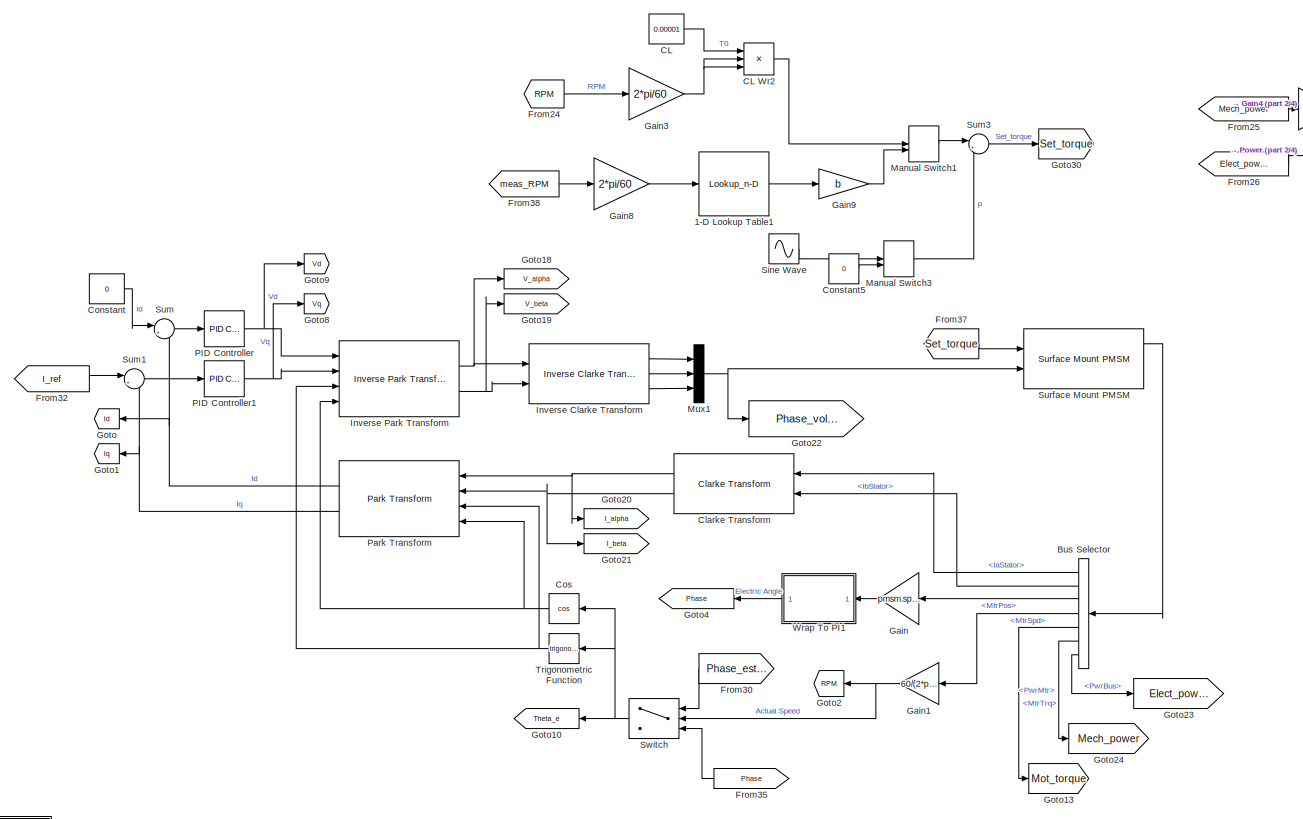
[diagram: root canvas - part 1/4, top center region]
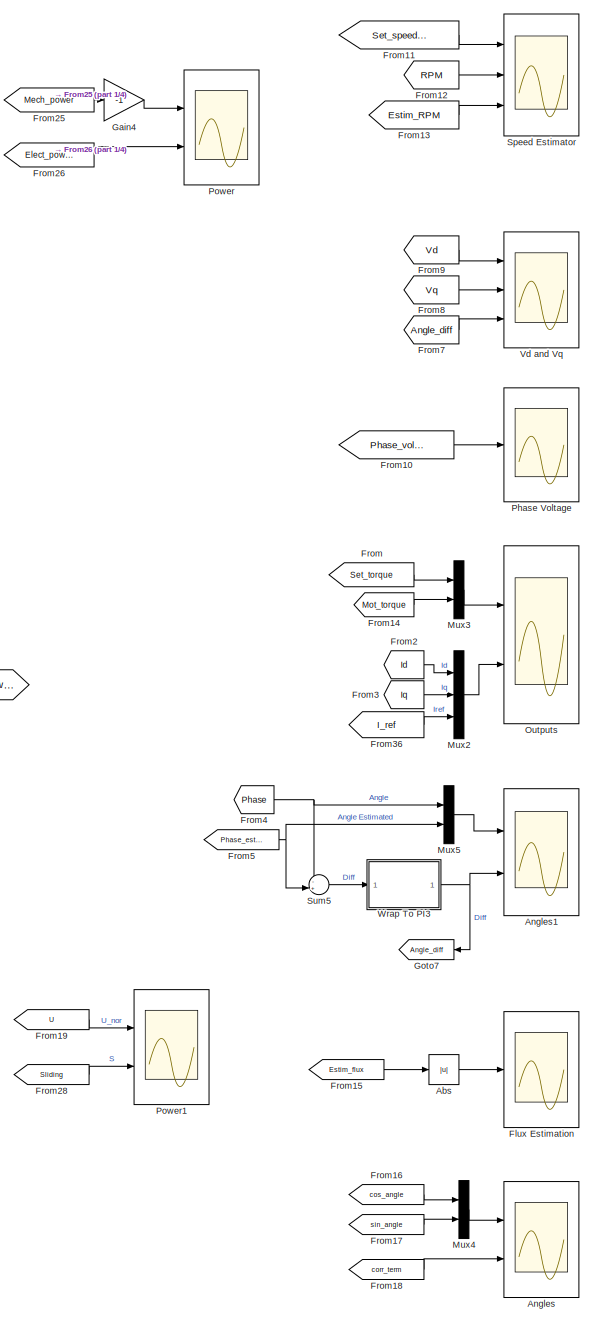
[diagram: root canvas - part 2/4, right side, full height]
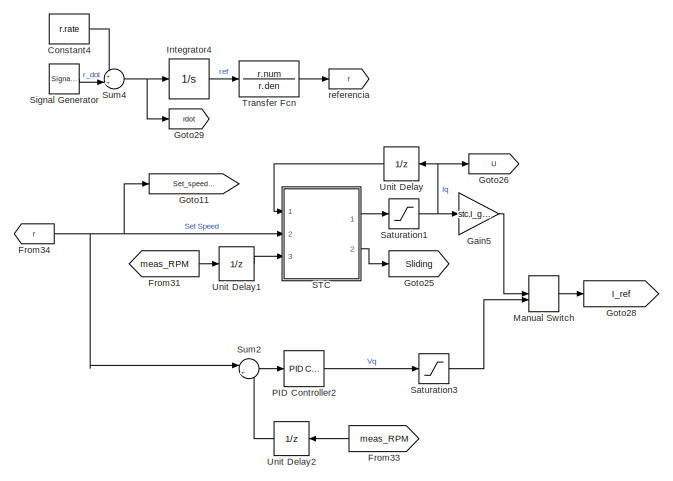
[diagram: root canvas - part 3/4, top left region]
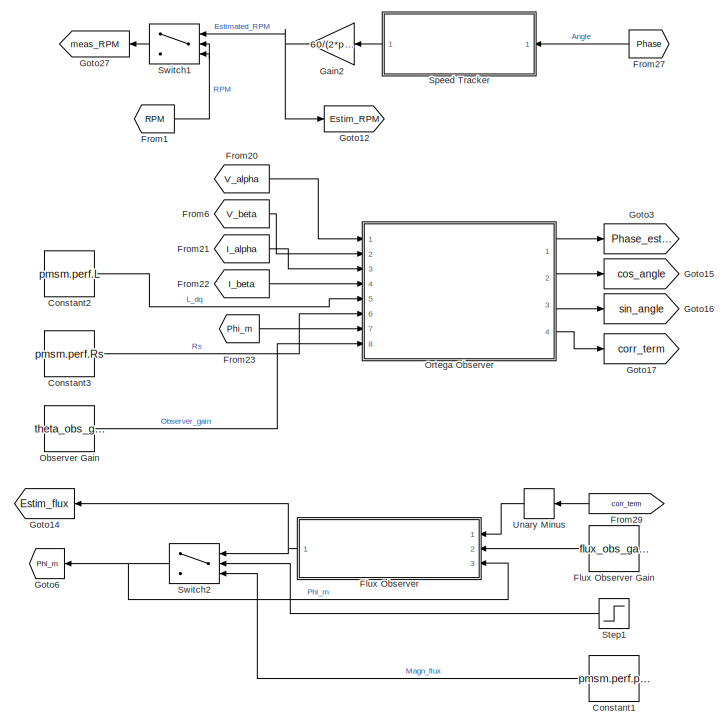
[diagram: root canvas - part 4/4, bottom left region]
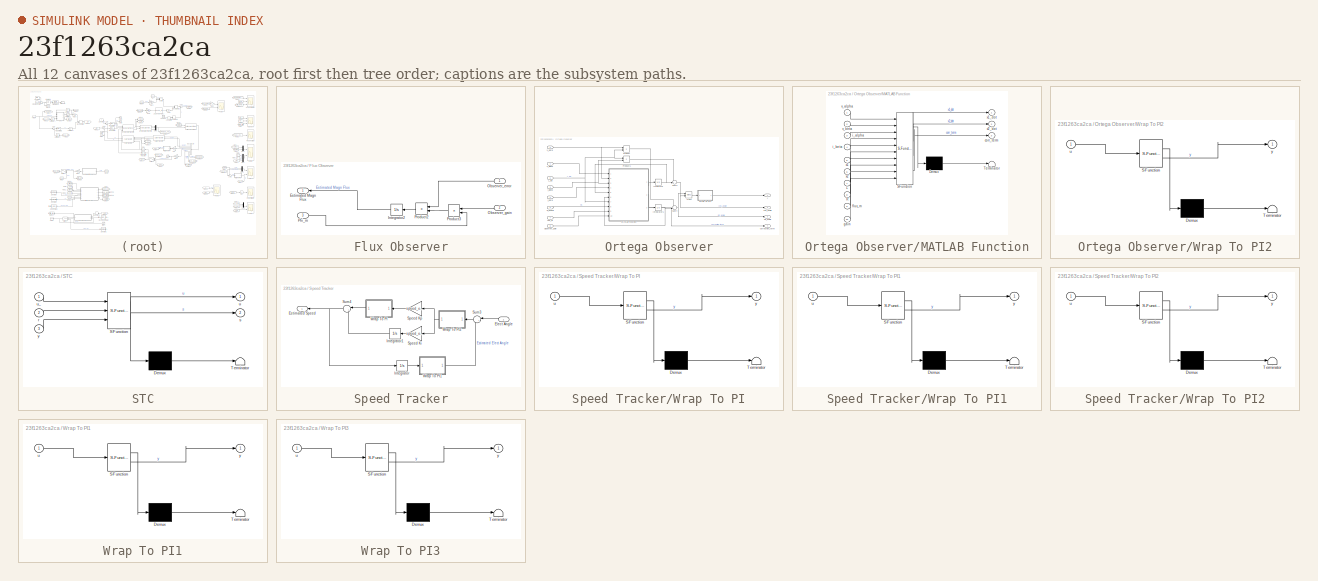
[diagram: thumbnail index - all 12 canvases of the model, root first then tree order]
MODEL slx_23f1263ca2ca
KIND model
CONFIG AbsTol = auto
CONFIG EnableMultiTasking = off
CONFIG FixedStep = 1e-4
CONFIG InitFcn = bldc_data\ntest_data
CONFIG MaxStep = auto
CONFIG MinStep = auto
CONFIG RelTol = 1e-5
CONFIG SampleTimeConstraint = Unconstrained
CONFIG SolverName = VariableStepAuto
CONFIG StartTime = 0.0
CONFIG StopTime = 3.0
BLOCK [Lookup_n-D] 1-D Lookup Table1
  BreakpointsForDimension1 = fluid.W
  InputPortMap = u0
  InternalRulePriority = Speed
  NumberOfTableDimensions = 1
  Ports = [1, 1]
  RndMeth = Simplest
  Table = fluid.P
BLOCK [Abs] Abs
  SaturateOnIntegerOverflow = off
BLOCK [Scope] Angles
  Floating = off
  NumInputPorts = 2
  Ports = [2]
  ScopeSpecificationString = Simulink.scopes.TimeScopeBlockCfg('CurrentConfiguration', extmgr.ConfigurationSet(extmgr.Configuration('Core','General UI',true),extmgr.Configuration('Core','Source UI',true),extmgr.Configuration('Sources','WiredSimulink',true,'DataLoggingVariableName','Angles','DataLogging',true,'DataLoggingSaveFormat','StructureWithTime'),extmgr.Configuration('Visuals','Time Domain',true,'SerializedDisplays',{st...<+2566ch>
BLOCK [Scope] Angles1
  Floating = off
  NumInputPorts = 2
  Ports = [2]
  ScopeSpecificationString = Simulink.scopes.TimeScopeBlockCfg('CurrentConfiguration', extmgr.ConfigurationSet(extmgr.Configuration('Core','General UI',true),extmgr.Configuration('Core','Source UI',true),extmgr.Configuration('Sources','WiredSimulink',true,'DataLoggingVariableName','Angles2','DataLogging',true,'DataLoggingSaveFormat','StructureWithTime'),extmgr.Configuration('Visuals','Time Domain',true,'SerializedDisplays',{s...<+2137ch>
BLOCK [BusSelector] Bus Selector
  OutputSignals = IaStator,IbStator,MtrPos,MtrSpd,MtrTrq,PwrInfo.PwrTrnsfrd.PwrMtr,PwrInfo.PwrTrnsfrd.PwrBus
  Ports = [1, 7]
BLOCK [Constant] CL
  Value = 0.00001
BLOCK [Product] CL Wr2
  Inputs = 3
  Ports = [3, 1]
BLOCK [Reference] Clarke Transform  REF=mcbcontrolslib/Clarke Transform
  Ports = [2, 2]
  SourceBlock = mcbcontrolslib/Clarke Transform
  SourceProductBaseCode = MT
  SourceType = Clarke Transform
BLOCK [Constant] Constant
  Value = 0
BLOCK [Constant] Constant1
  Value = pmsm.perf.phi
BLOCK [Constant] Constant2
  Value = pmsm.perf.L
BLOCK [Constant] Constant3
  Value = pmsm.perf.Rs
BLOCK [Constant] Constant4
  Value = r.rate
BLOCK [Constant] Constant5
  Value = 0
BLOCK [Trigonometry] Cos
  Operator = cos
  Ports = [1, 1]
BLOCK [Scope] Flux Estimation
  Floating = off
  NumInputPorts = 1
  Ports = [1]
  ScopeSpecificationString = Simulink.scopes.TimeScopeBlockCfg('CurrentConfiguration', extmgr.ConfigurationSet(extmgr.Configuration('Core','General UI',true),extmgr.Configuration('Core','Source UI',true),extmgr.Configuration('Sources','WiredSimulink',true,'DataLoggingVariableName','Flux','DataLogging',true,'DataLoggingSaveFormat','StructureWithTime'),extmgr.Configuration('Visuals','Time Domain',true,'SerializedDisplays',{stru...<+1716ch>
BLOCK [SubSystem] Flux Observer
  Ports = [3, 1]
  RequestExecContextInheritance = off
BLOCK [Constant] Flux Observer Gain
  Value = flux_obs_gain
BLOCK [Outport] Flux Observer/Estimated Magn Flux
BLOCK [Integrator] Flux Observer/Integrator2
  Ports = [1, 1]
BLOCK [Inport] Flux Observer/Observer_error
BLOCK [Inport] Flux Observer/Observer_gain
  Port = 2
BLOCK [Inport] Flux Observer/Phi_m
  Port = 3
BLOCK [Product] Flux Observer/Product2
  Ports = [2, 1]
BLOCK [Product] Flux Observer/Product3
  Ports = [2, 1]
BLOCK [From] From
  GotoTag = Set_torque
BLOCK [From] From1
  GotoTag = RPM
BLOCK [From] From10
  GotoTag = Phase_voltages
BLOCK [From] From11
  GotoTag = Set_speed_RPM
BLOCK [From] From12
  GotoTag = RPM
BLOCK [From] From13
  GotoTag = Estim_RPM
BLOCK [From] From14
  GotoTag = Mot_torque
BLOCK [From] From15
  GotoTag = Estim_flux
BLOCK [From] From16
  GotoTag = cos_angle
BLOCK [From] From17
  GotoTag = sin_angle
BLOCK [From] From18
  GotoTag = corr_term
BLOCK [From] From19
  GotoTag = U
BLOCK [From] From2
  GotoTag = Id
BLOCK [From] From20
  GotoTag = V_alpha
BLOCK [From] From21
  GotoTag = I_alpha
BLOCK [From] From22
  GotoTag = I_beta
BLOCK [From] From23
  GotoTag = Phi_m
BLOCK [From] From24
  GotoTag = RPM
BLOCK [From] From25
  GotoTag = Mech_power
BLOCK [From] From26
  GotoTag = Elect_power
BLOCK [From] From27
  GotoTag = Phase
BLOCK [From] From28
  GotoTag = Sliding
BLOCK [From] From29
  GotoTag = corr_term
BLOCK [From] From3
  GotoTag = Iq
BLOCK [From] From30
  GotoTag = Phase_estim
BLOCK [From] From31
  GotoTag = meas_RPM
BLOCK [From] From32
  GotoTag = I_ref
BLOCK [From] From33
  GotoTag = meas_RPM
BLOCK [From] From34
  GotoTag = r
BLOCK [From] From35
  GotoTag = Phase
BLOCK [From] From36
  GotoTag = I_ref
BLOCK [From] From37
  GotoTag = Set_torque
BLOCK [From] From38
  GotoTag = meas_RPM
BLOCK [From] From4
  GotoTag = Phase
BLOCK [From] From5
  GotoTag = Phase_estim
BLOCK [From] From6
  GotoTag = V_beta
BLOCK [From] From7
  GotoTag = Angle_diff
BLOCK [From] From8
  GotoTag = Vq
BLOCK [From] From9
  GotoTag = Vd
BLOCK [Gain] Gain
  Gain = pmsm.spec.poles/2
BLOCK [Gain] Gain1
  Gain = 60/(2*pi)
BLOCK [Gain] Gain2
  Gain = 60/(2*pi)/(pmsm.spec.poles/2)
BLOCK [Gain] Gain3
  Gain = 2*pi/60
BLOCK [Gain] Gain4
  Gain = -1
BLOCK [Gain] Gain5
  Gain = stc.I_gain
BLOCK [Gain] Gain8
  Gain = 2*pi/60
BLOCK [Gain] Gain9
  Gain = b
BLOCK [Goto] Goto
  GotoTag = Id
BLOCK [Goto] Goto1
  GotoTag = Iq
BLOCK [Goto] Goto10
  GotoTag = Theta_e
BLOCK [Goto] Goto11
  GotoTag = Set_speed_RPM
BLOCK [Goto] Goto12
  GotoTag = Estim_RPM
BLOCK [Goto] Goto13
  GotoTag = Mot_torque
BLOCK [Goto] Goto14
  GotoTag = Estim_flux
BLOCK [Goto] Goto15
  GotoTag = cos_angle
BLOCK [Goto] Goto16
  GotoTag = sin_angle
BLOCK [Goto] Goto17
  GotoTag = corr_term
BLOCK [Goto] Goto18
  GotoTag = V_alpha
BLOCK [Goto] Goto19
  GotoTag = V_beta
BLOCK [Goto] Goto2
  GotoTag = RPM
BLOCK [Goto] Goto20
  GotoTag = I_alpha
BLOCK [Goto] Goto21
  GotoTag = I_beta
BLOCK [Goto] Goto22
  GotoTag = Phase_voltages
BLOCK [Goto] Goto23
  GotoTag = Elect_power
BLOCK [Goto] Goto24
  GotoTag = Mech_power
BLOCK [Goto] Goto25
  GotoTag = Sliding
BLOCK [Goto] Goto26
  GotoTag = U
BLOCK [Goto] Goto27
  GotoTag = meas_RPM
BLOCK [Goto] Goto28
  GotoTag = I_ref
BLOCK [Goto] Goto29
  GotoTag = rdot
  NameLocation = top
BLOCK [Goto] Goto3
  GotoTag = Phase_estim
BLOCK [Goto] Goto30
  GotoTag = Set_torque
BLOCK [Goto] Goto4
  GotoTag = Phase
BLOCK [Goto] Goto6
  GotoTag = Phi_m
BLOCK [Goto] Goto7
  GotoTag = Angle_diff
BLOCK [Goto] Goto8
  GotoTag = Vq
BLOCK [Goto] Goto9
  GotoTag = Vd
BLOCK [Integrator] Integrator4
  InitialCondition = r.off
  LimitOutput = on
  LowerSaturationLimit = 0
  Ports = [1, 1]
  UpperSaturationLimit = r.lim
BLOCK [Reference] Inverse Clarke Transform  REF=mcbcontrolslib/Inverse Clarke Transform
  Ports = [2, 3]
  SourceBlock = mcbcontrolslib/Inverse Clarke Transform
  SourceProductBaseCode = MT
  SourceType = Inverse Clarke Transform
BLOCK [Reference] Inverse Park Transform  REF=mcbcontrolslib/Inverse Park Transform
  Ports = [4, 2]
  SourceBlock = mcbcontrolslib/Inverse Park Transform
  SourceProductBaseCode = MT
  SourceType = Inverse Park Transform
BLOCK [ManualSwitch] Manual Switch
  CurrentSetting = 0
BLOCK [ManualSwitch] Manual Switch1
BLOCK [ManualSwitch] Manual Switch3
  CurrentSetting = 0
BLOCK [Mux] Mux1
  DisplayOption = bar
  Inputs = 3
  Ports = [3, 1]
BLOCK [Mux] Mux2
  DisplayOption = bar
  Inputs = 3
  Ports = [3, 1]
BLOCK [Mux] Mux3
  DisplayOption = bar
  Inputs = 2
  Ports = [2, 1]
BLOCK [Mux] Mux4
  DisplayOption = bar
  Inputs = 2
  Ports = [2, 1]
BLOCK [Mux] Mux5
  DisplayOption = bar
  Inputs = 2
  Ports = [2, 1]
BLOCK [Constant] Observer Gain
  NameLocation = left
  Value = theta_obs_gain
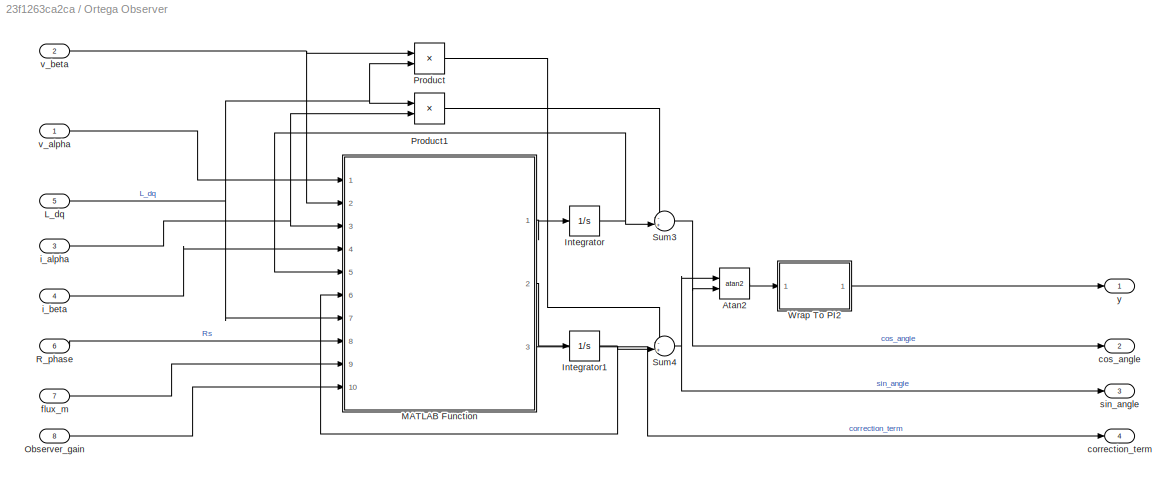
BLOCK [SubSystem] Ortega Observer
  Ports = [8, 4]
  RequestExecContextInheritance = off
BLOCK [Trigonometry] Ortega Observer/Atan2
  Operator = atan2
  Ports = [2, 1]
BLOCK [Integrator] Ortega Observer/Integrator
  Ports = [1, 1]
BLOCK [Integrator] Ortega Observer/Integrator1
  Ports = [1, 1]
BLOCK [Inport] Ortega Observer/L_dq
  Port = 5
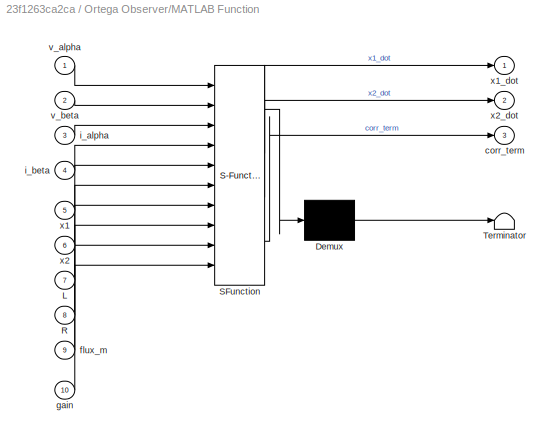
BLOCK [SubSystem] Ortega Observer/MATLAB Function
  ErrorFcn = Stateflow.Translate.translate
  PermitHierarchicalResolution = ExplicitOnly
  Ports = [10, 3]
  RequestExecContextInheritance = off
  SFBlockType = MATLAB Function
  TreatAsAtomicUnit = on
BLOCK [Demux] Ortega Observer/MATLAB Function/ Demux 
  Outputs = 1
  Ports = [1, 1]
BLOCK [S-Function] Ortega Observer/MATLAB Function/ SFunction 
  EnableBusSupport = on
  FunctionName = sf_sfun
  PortCounts = [10 4]
  Ports = [10, 4]
  SFcnIsStateOwnerBlock = off
  SFunctionDeploymentMode = off
  Tag = Stateflow S-Function 3
BLOCK [Terminator] Ortega Observer/MATLAB Function/ Terminator 
BLOCK [Inport] Ortega Observer/MATLAB Function/L
  Port = 7
BLOCK [Inport] Ortega Observer/MATLAB Function/R
  Port = 8
BLOCK [Outport] Ortega Observer/MATLAB Function/corr_term
  Port = 3
BLOCK [Inport] Ortega Observer/MATLAB Function/flux_m
  Port = 9
BLOCK [Inport] Ortega Observer/MATLAB Function/gain
  Port = 10
BLOCK [Inport] Ortega Observer/MATLAB Function/i_alpha
  Port = 3
BLOCK [Inport] Ortega Observer/MATLAB Function/i_beta
  Port = 4
BLOCK [Inport] Ortega Observer/MATLAB Function/v_alpha
BLOCK [Inport] Ortega Observer/MATLAB Function/v_beta
  Port = 2
BLOCK [Inport] Ortega Observer/MATLAB Function/x1
  Port = 5
BLOCK [Outport] Ortega Observer/MATLAB Function/x1_dot
BLOCK [Inport] Ortega Observer/MATLAB Function/x2
  Port = 6
BLOCK [Outport] Ortega Observer/MATLAB Function/x2_dot
  Port = 2
BLOCK [Inport] Ortega Observer/Observer_gain
  Port = 8
BLOCK [Product] Ortega Observer/Product
  Ports = [2, 1]
BLOCK [Product] Ortega Observer/Product1
  Ports = [2, 1]
BLOCK [Inport] Ortega Observer/R_phase
  Port = 6
BLOCK [Sum] Ortega Observer/Sum3
  Inputs = -+|
  Ports = [2, 1]
BLOCK [Sum] Ortega Observer/Sum4
  Inputs = -+|
  Ports = [2, 1]
BLOCK [SubSystem] Ortega Observer/Wrap To PI2
  ErrorFcn = Stateflow.Translate.translate
  PermitHierarchicalResolution = ExplicitOnly
  Ports = [1, 1]
  RequestExecContextInheritance = off
  SFBlockType = MATLAB Function
  TreatAsAtomicUnit = on
BLOCK [Demux] Ortega Observer/Wrap To PI2/ Demux 
  Outputs = 1
  Ports = [1, 1]
BLOCK [S-Function] Ortega Observer/Wrap To PI2/ SFunction 
  EnableBusSupport = on
  FunctionName = sf_sfun
  PortCounts = [1 2]
  Ports = [1, 2]
  SFcnIsStateOwnerBlock = off
  SFunctionDeploymentMode = off
  Tag = Stateflow S-Function 5
BLOCK [Terminator] Ortega Observer/Wrap To PI2/ Terminator 
BLOCK [Inport] Ortega Observer/Wrap To PI2/u
BLOCK [Outport] Ortega Observer/Wrap To PI2/y
BLOCK [Outport] Ortega Observer/correction_term
  Port = 4
BLOCK [Outport] Ortega Observer/cos_angle
  Port = 2
BLOCK [Inport] Ortega Observer/flux_m
  Port = 7
BLOCK [Inport] Ortega Observer/i_alpha
  Port = 3
BLOCK [Inport] Ortega Observer/i_beta
  Port = 4
BLOCK [Outport] Ortega Observer/sin_angle
  Port = 3
BLOCK [Inport] Ortega Observer/v_alpha
BLOCK [Inport] Ortega Observer/v_beta
  Port = 2
BLOCK [Outport] Ortega Observer/y
BLOCK [Scope] Outputs
  Floating = off
  NumInputPorts = 2
  Ports = [2]
  ScopeSpecificationString = Simulink.scopes.TimeScopeBlockCfg('CurrentConfiguration', extmgr.ConfigurationSet(extmgr.Configuration('Core','General UI',true),extmgr.Configuration('Core','Source UI',true),extmgr.Configuration('Sources','WiredSimulink',true,'DataLoggingVariableName','Torque_Curr','DataLogging',true,'DataLoggingSaveFormat','StructureWithTime'),extmgr.Configuration('Visuals','Time Domain',true,'SerializedDisplays...<+2128ch>
BLOCK [Reference] PID Controller  REF=pid_lib/PID Controller
  Ports = [1, 1]
  SourceBlock = pid_lib/PID Controller
  SourceProductBaseCode = SL
  SourceType = PID 1dof
BLOCK [Reference] PID Controller1  REF=pid_lib/PID Controller
  Ports = [1, 1]
  SourceBlock = pid_lib/PID Controller
  SourceProductBaseCode = SL
  SourceType = PID 1dof
BLOCK [Reference] PID Controller2  REF=pid_lib/PID Controller
  Ports = [1, 1]
  SourceBlock = pid_lib/PID Controller
  SourceProductBaseCode = SL
  SourceType = PID 1dof
BLOCK [Reference] Park Transform  REF=mcbcontrolslib/Park Transform
  Ports = [4, 2]
  SourceBlock = mcbcontrolslib/Park Transform
  SourceProductBaseCode = MT
  SourceType = Park Transform
BLOCK [Scope] Phase Voltage
  Floating = off
  NumInputPorts = 1
  Ports = [1]
  ScopeSpecificationString = Simulink.scopes.TimeScopeBlockCfg('CurrentConfiguration', extmgr.ConfigurationSet(extmgr.Configuration('Core','General UI',true),extmgr.Configuration('Core','Source UI',true),extmgr.Configuration('Sources','WiredSimulink',true,'DataLoggingVariableName','PhaseVolt','DataLogging',true,'DataLoggingSaveFormat','StructureWithTime'),extmgr.Configuration('Visuals','Time Domain',true,'SerializedDisplays',...<+1604ch>
BLOCK [Scope] Power
  Floating = off
  NumInputPorts = 2
  Ports = [2]
  ScopeSpecificationString = Simulink.scopes.TimeScopeBlockCfg('CurrentConfiguration', extmgr.ConfigurationSet(extmgr.Configuration('Core','General UI',true),extmgr.Configuration('Core','Source UI',true),extmgr.Configuration('Sources','WiredSimulink',true,'DataLoggingVariableName','ScopeData1'),extmgr.Configuration('Visuals','Time Domain',true,'SerializedDisplays',{struct('MinYLimReal','-13516.79456','MaxYLimReal','11646.9924...<+2157ch>
BLOCK [Scope] Power1
  Floating = off
  NumInputPorts = 2
  Ports = [2]
  ScopeSpecificationString = Simulink.scopes.TimeScopeBlockCfg('CurrentConfiguration', extmgr.ConfigurationSet(extmgr.Configuration('Core','General UI',true),extmgr.Configuration('Core','Source UI',true),extmgr.Configuration('Sources','WiredSimulink',true,'DataLoggingVariableName','ScopeData1'),extmgr.Configuration('Visuals','Time Domain',true,'SerializedDisplays',{struct('MinYLimReal','-1.25','MaxYLimReal','1.25','YLabelReal...<+2314ch>
BLOCK [SubSystem] STC
  ErrorFcn = Stateflow.Translate.translate
  PermitHierarchicalResolution = ExplicitOnly
  Ports = [3, 2]
  RequestExecContextInheritance = off
  SFBlockType = MATLAB Function
  SystemSampleTime = stc.ts
  TreatAsAtomicUnit = on
BLOCK [Demux] STC/ Demux 
  Outputs = 1
  Ports = [1, 1]
BLOCK [S-Function] STC/ SFunction 
  EnableBusSupport = on
  FunctionName = sf_sfun
  Parameters = stc
  PortCounts = [3 3]
  Ports = [3, 3]
  SFcnIsStateOwnerBlock = off
  SFunctionDeploymentMode = off
  Tag = Stateflow S-Function 8
BLOCK [Terminator] STC/ Terminator 
BLOCK [Inport] STC/r
  Port = 2
BLOCK [Outport] STC/s
  Port = 2
BLOCK [Outport] STC/u
BLOCK [Inport] STC/u_
BLOCK [Inport] STC/y
  Port = 3
BLOCK [Saturate] Saturation1
  LowerLimit = -stc.UM
  UpperLimit = stc.UM
BLOCK [Saturate] Saturation3
  LowerLimit = -current_limit
  UpperLimit = current_limit
BLOCK [SignalGenerator] Signal Generator
  Amplitude = r.a
  Frequency = r.f
  Ports = [0, 1]
BLOCK [Sin] Sine Wave
  Amplitude = p.a
  Frequency = p.w
  Ports = [0, 1]
  SampleTime = 0
BLOCK [Scope] Speed Estimator
  Floating = off
  NumInputPorts = 3
  Ports = [3]
  ScopeSpecificationString = Simulink.scopes.TimeScopeBlockCfg('CurrentConfiguration', extmgr.ConfigurationSet(extmgr.Configuration('Core','General UI',true),extmgr.Configuration('Core','Source UI',true),extmgr.Configuration('Sources','WiredSimulink',true,'DataLoggingVariableName','Speed','DataLogging',true,'DataLoggingSaveFormat','StructureWithTime'),extmgr.Configuration('Visuals','Time Domain',true,'SerializedDisplays',{str...<+1663ch>
BLOCK [SubSystem] Speed Tracker
  Ports = [1, 1]
  RequestExecContextInheritance = off
BLOCK [Inport] Speed Tracker/Elect Angle
BLOCK [Outport] Speed Tracker/Estimated Speed
BLOCK [Integrator] Speed Tracker/Integrator
  Ports = [1, 1]
BLOCK [Integrator] Speed Tracker/Integrator1
  Ports = [1, 1]
BLOCK [Gain] Speed Tracker/Speed Ki
  Gain = speed_obs.ki
BLOCK [Gain] Speed Tracker/Speed Kp
  Gain = speed_obs.kp
BLOCK [Sum] Speed Tracker/Sum3
  Inputs = |+-
  Ports = [2, 1]
BLOCK [Sum] Speed Tracker/Sum4
  Inputs = |++
  Ports = [2, 1]
BLOCK [SubSystem] Speed Tracker/Wrap To PI
  ErrorFcn = Stateflow.Translate.translate
  PermitHierarchicalResolution = ExplicitOnly
  Ports = [1, 1]
  RequestExecContextInheritance = off
  SFBlockType = MATLAB Function
  TreatAsAtomicUnit = on
BLOCK [Demux] Speed Tracker/Wrap To PI/ Demux 
  Outputs = 1
  Ports = [1, 1]
BLOCK [S-Function] Speed Tracker/Wrap To PI/ SFunction 
  EnableBusSupport = on
  FunctionName = sf_sfun
  PortCounts = [1 2]
  Ports = [1, 2]
  SFcnIsStateOwnerBlock = off
  SFunctionDeploymentMode = off
  Tag = Stateflow S-Function 2
BLOCK [Terminator] Speed Tracker/Wrap To PI/ Terminator 
BLOCK [Inport] Speed Tracker/Wrap To PI/u
BLOCK [Outport] Speed Tracker/Wrap To PI/y
BLOCK [SubSystem] Speed Tracker/Wrap To PI1
  ErrorFcn = Stateflow.Translate.translate
  PermitHierarchicalResolution = ExplicitOnly
  Ports = [1, 1]
  RequestExecContextInheritance = off
  SFBlockType = MATLAB Function
  TreatAsAtomicUnit = on
BLOCK [Demux] Speed Tracker/Wrap To PI1/ Demux 
  Outputs = 1
  Ports = [1, 1]
BLOCK [S-Function] Speed Tracker/Wrap To PI1/ SFunction 
  EnableBusSupport = on
  FunctionName = sf_sfun
  PortCounts = [1 2]
  Ports = [1, 2]
  SFcnIsStateOwnerBlock = off
  SFunctionDeploymentMode = off
  Tag = Stateflow S-Function 1
BLOCK [Terminator] Speed Tracker/Wrap To PI1/ Terminator 
BLOCK [Inport] Speed Tracker/Wrap To PI1/u
BLOCK [Outport] Speed Tracker/Wrap To PI1/y
BLOCK [SubSystem] Speed Tracker/Wrap To PI2
  ErrorFcn = Stateflow.Translate.translate
  PermitHierarchicalResolution = ExplicitOnly
  Ports = [1, 1]
  RequestExecContextInheritance = off
  SFBlockType = MATLAB Function
  TreatAsAtomicUnit = on
BLOCK [Demux] Speed Tracker/Wrap To PI2/ Demux 
  Outputs = 1
  Ports = [1, 1]
BLOCK [S-Function] Speed Tracker/Wrap To PI2/ SFunction 
  EnableBusSupport = on
  FunctionName = sf_sfun
  PortCounts = [1 2]
  Ports = [1, 2]
  SFcnIsStateOwnerBlock = off
  SFunctionDeploymentMode = off
  Tag = Stateflow S-Function 6
BLOCK [Terminator] Speed Tracker/Wrap To PI2/ Terminator 
BLOCK [Inport] Speed Tracker/Wrap To PI2/u
BLOCK [Outport] Speed Tracker/Wrap To PI2/y
BLOCK [Step] Step1
  After = 2
  SampleTime = 0
  Time = 0.01
BLOCK [Sum] Sum
  Inputs = |+-
  Ports = [2, 1]
BLOCK [Sum] Sum1
  Inputs = |+-
  Ports = [2, 1]
BLOCK [Sum] Sum2
  Inputs = |+-
  Ports = [2, 1]
BLOCK [Sum] Sum3
  Inputs = |++
  Ports = [2, 1]
BLOCK [Sum] Sum4
  Inputs = ++|
  Ports = [2, 1]
BLOCK [Sum] Sum5
  Inputs = -+|
  Ports = [2, 1]
BLOCK [Reference] Surface Mount PMSM  REF=autolibpmsmexterior/Surface Mount PMSM
  Ports = [2, 3]
  SourceBlock = autolibpmsmexterior/Surface Mount PMSM
  SourceProductBaseCode = PW,DR,MT,UV,VE
  SourceType = Surface Mount PMSM
BLOCK [Switch] Switch
  Criteria = u2 > Threshold
  InputSameDT = off
  SaturateOnIntegerOverflow = off
  Threshold = 3000
BLOCK [Switch] Switch1
  Criteria = u2 > Threshold
  InputSameDT = off
  SaturateOnIntegerOverflow = off
  Threshold = 25000
BLOCK [Switch] Switch2
  Criteria = u2 > Threshold
  InputSameDT = off
  SaturateOnIntegerOverflow = off
  Threshold = 0.5
BLOCK [TransferFcn] Transfer Fcn
  Denominator = r.den
  Numerator = r.num
BLOCK [Trigonometry] Trigonometric Function
  Ports = [1, 1]
BLOCK [UnaryMinus] Unary Minus
BLOCK [UnitDelay] Unit Delay
  HasFrameUpgradeWarning = on
  SampleTime = -1
BLOCK [UnitDelay] Unit Delay1
  HasFrameUpgradeWarning = on
  SampleTime = -1
BLOCK [UnitDelay] Unit Delay2
  HasFrameUpgradeWarning = on
  SampleTime = -1
BLOCK [Scope] Vd and Vq
  Floating = off
  NumInputPorts = 3
  Ports = [3]
  ScopeSpecificationString = Simulink.scopes.TimeScopeBlockCfg('CurrentConfiguration', extmgr.ConfigurationSet(extmgr.Configuration('Core','General UI',true),extmgr.Configuration('Core','Source UI',true),extmgr.Configuration('Sources','WiredSimulink',true,'DataLoggingVariableName','Vdq','DataLogging',true,'DataLoggingSaveFormat','StructureWithTime'),extmgr.Configuration('Visuals','Time Domain',true,'SerializedDisplays',{struc...<+2847ch>
BLOCK [SubSystem] Wrap To PI1
  ErrorFcn = Stateflow.Translate.translate
  PermitHierarchicalResolution = ExplicitOnly
  Ports = [1, 1]
  RequestExecContextInheritance = off
  SFBlockType = MATLAB Function
  TreatAsAtomicUnit = on
BLOCK [Demux] Wrap To PI1/ Demux 
  Outputs = 1
  Ports = [1, 1]
BLOCK [S-Function] Wrap To PI1/ SFunction 
  EnableBusSupport = on
  FunctionName = sf_sfun
  PortCounts = [1 2]
  Ports = [1, 2]
  SFcnIsStateOwnerBlock = off
  SFunctionDeploymentMode = off
  Tag = Stateflow S-Function 4
BLOCK [Terminator] Wrap To PI1/ Terminator 
BLOCK [Inport] Wrap To PI1/u
BLOCK [Outport] Wrap To PI1/y
BLOCK [SubSystem] Wrap To PI3
  ErrorFcn = Stateflow.Translate.translate
  PermitHierarchicalResolution = ExplicitOnly
  Ports = [1, 1]
  RequestExecContextInheritance = off
  SFBlockType = MATLAB Function
  TreatAsAtomicUnit = on
BLOCK [Demux] Wrap To PI3/ Demux 
  Outputs = 1
  Ports = [1, 1]
BLOCK [S-Function] Wrap To PI3/ SFunction 
  EnableBusSupport = on
  FunctionName = sf_sfun
  PortCounts = [1 2]
  Ports = [1, 2]
  SFcnIsStateOwnerBlock = off
  SFunctionDeploymentMode = off
  Tag = Stateflow S-Function 7
BLOCK [Terminator] Wrap To PI3/ Terminator 
BLOCK [Inport] Wrap To PI3/u
BLOCK [Outport] Wrap To PI3/y
BLOCK [Goto] referencia
  GotoTag = r
LINE 1-D Lookup Table1:1 -> Gain9:1
LINE Abs:1 -> Flux Estimation:1
LINE Bus Selector:1 -> Clarke Transform:1
LINE Bus Selector:2 -> Clarke Transform:2
LINE Bus Selector:3 -> Gain:1
LINE Bus Selector:4 -> Gain1:1
LINE Bus Selector:5 -> Goto13:1
LINE Bus Selector:6 -> Goto24:1
LINE Bus Selector:7 -> Goto23:1
LINE CL Wr2:1 -> Manual Switch1:1
LINE CL:1 -> CL Wr2:1
NET Clarke Transform:1 -> Goto20:1, Park Transform:1
NET Clarke Transform:2 -> Goto21:1, Park Transform:2
LINE Constant1:1 -> Switch2:3
LINE Constant2:1 -> Ortega Observer:5
LINE Constant3:1 -> Ortega Observer:6
LINE Constant4:1 -> Sum4:1
LINE Constant5:1 -> Manual Switch3:2
LINE Constant:1 -> Sum:1
NET Cos:1 -> Inverse Park Transform:4, Park Transform:4
LINE Flux Observer Gain:1 -> Flux Observer:2
LINE Flux Observer/Integrator2:1 -> Flux Observer/Estimated Magn Flux:1
LINE Flux Observer/Observer_error:1 -> Flux Observer/Product2:1
LINE Flux Observer/Observer_gain:1 -> Flux Observer/Product3:1
LINE Flux Observer/Phi_m:1 -> Flux Observer/Product3:2
LINE Flux Observer/Product2:1 -> Flux Observer/Integrator2:1
LINE Flux Observer/Product3:1 -> Flux Observer/Product2:2
NET Flux Observer:1 -> Goto14:1, Switch2:1
LINE From10:1 -> Phase Voltage:1
LINE From11:1 -> Speed Estimator:1
LINE From12:1 -> Speed Estimator:2
LINE From13:1 -> Speed Estimator:3
LINE From14:1 -> Mux3:2
LINE From15:1 -> Abs:1
LINE From16:1 -> Mux4:1
LINE From17:1 -> Mux4:2
LINE From18:1 -> Angles:2
LINE From19:1 -> Power1:1
NET From1:1 -> Switch1:2, Switch1:3
LINE From20:1 -> Ortega Observer:1
LINE From21:1 -> Ortega Observer:3
LINE From22:1 -> Ortega Observer:4
LINE From23:1 -> Ortega Observer:7
LINE From24:1 -> Gain3:1
LINE From25:1 -> Gain4:1
LINE From26:1 -> Power:2
LINE From27:1 -> Speed Tracker:1
LINE From28:1 -> Power1:2
LINE From29:1 -> Unary Minus:1
LINE From2:1 -> Mux2:1
LINE From30:1 -> Switch:1
LINE From31:1 -> Unit Delay1:1
LINE From32:1 -> Sum1:1
LINE From33:1 -> Unit Delay2:1
NET From34:1 -> Goto11:1, STC:2, Sum2:1
LINE From35:1 -> Switch:3
LINE From36:1 -> Mux2:3
LINE From37:1 -> Surface Mount PMSM:1
LINE From38:1 -> Gain8:1
LINE From3:1 -> Mux2:2
NET From4:1 -> Mux5:1, Sum5:1
NET From5:1 -> Mux5:2, Sum5:2
LINE From6:1 -> Ortega Observer:2
LINE From7:1 -> Vd and Vq:3
LINE From8:1 -> Vd and Vq:2
LINE From9:1 -> Vd and Vq:1
LINE From:1 -> Mux3:1
NET Gain1:1 -> Goto2:1, Switch:2
NET Gain2:1 -> Goto12:1, Switch1:1
NET Gain3:1 -> CL Wr2:2, CL Wr2:3
LINE Gain4:1 -> Power:1
LINE Gain5:1 -> Manual Switch:1
LINE Gain8:1 -> 1-D Lookup Table1:1
LINE Gain9:1 -> Manual Switch1:2
LINE Gain:1 -> Wrap To PI1:1
LINE Integrator4:1 -> Transfer Fcn:1
LINE Inverse Clarke Transform:1 -> Mux1:1
LINE Inverse Clarke Transform:2 -> Mux1:2
LINE Inverse Clarke Transform:3 -> Mux1:3
NET Inverse Park Transform:1 -> Goto18:1, Inverse Clarke Transform:1
NET Inverse Park Transform:2 -> Goto19:1, Inverse Clarke Transform:2
LINE Manual Switch1:1 -> Sum3:1
LINE Manual Switch3:1 -> Sum3:2
LINE Manual Switch:1 -> Goto28:1
NET Mux1:1 -> Goto22:1, Surface Mount PMSM:2
LINE Mux2:1 -> Outputs:2
LINE Mux3:1 -> Outputs:1
LINE Mux4:1 -> Angles:1
LINE Mux5:1 -> Angles1:1
LINE Observer Gain:1 -> Ortega Observer:8
LINE Ortega Observer/Atan2:1 -> Ortega Observer/Wrap To PI2:1
NET Ortega Observer/Integrator1:1 -> Ortega Observer/MATLAB Function:6, Ortega Observer/Sum4:2
NET Ortega Observer/Integrator:1 -> Ortega Observer/MATLAB Function:5, Ortega Observer/Sum3:2
NET Ortega Observer/L_dq:1 -> Ortega Observer/MATLAB Function:7, Ortega Observer/Product1:1, Ortega Observer/Product:2
LINE Ortega Observer/MATLAB Function:1 -> Ortega Observer/Integrator:1
LINE Ortega Observer/MATLAB Function:2 -> Ortega Observer/Integrator1:1
LINE Ortega Observer/MATLAB Function:3 -> Ortega Observer/correction_term:1
LINE Ortega Observer/Observer_gain:1 -> Ortega Observer/MATLAB Function:10
LINE Ortega Observer/Product1:1 -> Ortega Observer/Sum3:1
LINE Ortega Observer/Product:1 -> Ortega Observer/Sum4:1
LINE Ortega Observer/R_phase:1 -> Ortega Observer/MATLAB Function:8
NET Ortega Observer/Sum3:1 -> Ortega Observer/Atan2:2, Ortega Observer/cos_angle:1
NET Ortega Observer/Sum4:1 -> Ortega Observer/Atan2:1, Ortega Observer/sin_angle:1
LINE Ortega Observer/Wrap To PI2:1 -> Ortega Observer/y:1
LINE Ortega Observer/flux_m:1 -> Ortega Observer/MATLAB Function:9
NET Ortega Observer/i_alpha:1 -> Ortega Observer/MATLAB Function:3, Ortega Observer/Product1:2
LINE Ortega Observer/i_beta:1 -> Ortega Observer/MATLAB Function:4
LINE Ortega Observer/v_alpha:1 -> Ortega Observer/MATLAB Function:1
NET Ortega Observer/v_beta:1 -> Ortega Observer/MATLAB Function:2, Ortega Observer/Product:1
LINE Ortega Observer:1 -> Goto3:1
LINE Ortega Observer:2 -> Goto15:1
LINE Ortega Observer:3 -> Goto16:1
LINE Ortega Observer:4 -> Goto17:1
NET PID Controller1:1 -> Goto8:1, Inverse Park Transform:2
LINE PID Controller2:1 -> Saturation3:1
NET PID Controller:1 -> Goto9:1, Inverse Park Transform:1
NET Park Transform:1 -> Goto:1, Sum:2
NET Park Transform:2 -> Goto1:1, Sum1:2
LINE STC:1 -> Saturation1:1
LINE STC:2 -> Goto25:1
NET Saturation1:1 -> Gain5:1, Goto26:1, Unit Delay:1
LINE Saturation3:1 -> Manual Switch:2
LINE Signal Generator:1 -> Sum4:2
LINE Sine Wave:1 -> Manual Switch3:1
LINE Speed Tracker/Elect Angle:1 -> Speed Tracker/Sum3:1
LINE Speed Tracker/Integrator1:1 -> Speed Tracker/Sum4:2
LINE Speed Tracker/Integrator:1 -> Speed Tracker/Wrap To PI1:1
LINE Speed Tracker/Speed Ki:1 -> Speed Tracker/Integrator1:1
LINE Speed Tracker/Speed Kp:1 -> Speed Tracker/Wrap To PI:1
LINE Speed Tracker/Sum3:1 -> Speed Tracker/Wrap To PI2:1
NET Speed Tracker/Sum4:1 -> Speed Tracker/Estimated Speed:1, Speed Tracker/Integrator:1
LINE Speed Tracker/Wrap To PI1:1 -> Speed Tracker/Sum3:2
NET Speed Tracker/Wrap To PI2:1 -> Speed Tracker/Speed Ki:1, Speed Tracker/Speed Kp:1
LINE Speed Tracker/Wrap To PI:1 -> Speed Tracker/Sum4:1
LINE Speed Tracker:1 -> Gain2:1
LINE Step1:1 -> Switch2:2
LINE Sum1:1 -> PID Controller1:1
LINE Sum2:1 -> PID Controller2:1
LINE Sum3:1 -> Goto30:1
NET Sum4:1 -> Goto29:1, Integrator4:1
LINE Sum5:1 -> Wrap To PI3:1
LINE Sum:1 -> PID Controller:1
LINE Surface Mount PMSM:1 -> Bus Selector:1
LINE Switch1:1 -> Goto27:1
NET Switch2:1 -> Flux Observer:3, Goto6:1
NET Switch:1 -> Cos:1, Goto10:1, Trigonometric Function:1
LINE Transfer Fcn:1 -> referencia:1
NET Trigonometric Function:1 -> Inverse Park Transform:3, Park Transform:3
LINE Unary Minus:1 -> Flux Observer:1
LINE Unit Delay1:1 -> STC:3
LINE Unit Delay2:1 -> Sum2:2
LINE Unit Delay:1 -> STC:1
LINE Wrap To PI1:1 -> Goto4:1
NET Wrap To PI3:1 -> Angles1:2, Goto7:1
note: NET lines group one-source signal fan-out (src -> all destinations, sorted); 1:1 wires keep LINE
CHART Speed Tracker/Wrap To PI1 states=1 transitions=1
  STATE_LABEL 'eML_blk_kernel()'
  STATE_LABEL 'SCRIPT:\nfunction y = fcn(u)\n\ny = wrapToPi(u);\n'
CHART Speed Tracker/Wrap To PI states=1 transitions=1
  STATE_LABEL 'eML_blk_kernel()'
  STATE_LABEL 'SCRIPT:\nfunction y = fcn(u)\n\ny = wrapToPi(u);\n'
CHART Ortega Observer/MATLAB Function states=1 transitions=1
  STATE_LABEL 'eML_blk_kernel()'
  STATE_LABEL 'SCRIPT:\nfunction [x1_dot,x2_dot,corr_term] = ortega_obs(v_alpha, v_beta, i_alpha, i_beta, x1, x2, L, R, flux_m, gain)\n\ncorr_term = flux_m^2 - ((x1 - L*i_alpha)^2 + (x2 - L*i_beta)^2);\n\n% if(corr_term < 0)\n%      corr_term = 0;\n% end\n\nx1_dot = v_alpha - R*i_alpha + gain/2 * (x1 - L*i_alpha) * corr_term;\nx2_dot = v_beta - R*i_beta + gain/2 * (x2 - L*i_beta) * corr_term;\n\n'
CHART Wrap To PI1 states=1 transitions=1
  STATE_LABEL 'eML_blk_kernel()'
  STATE_LABEL 'SCRIPT:\nfunction y = fcn(u)\n\ny = wrapToPi(u);\n'
CHART Ortega Observer/Wrap To PI2 states=1 transitions=1
  STATE_LABEL 'eML_blk_kernel()'
  STATE_LABEL 'SCRIPT:\nfunction y = fcn(u)\n\ny = wrapToPi(u);\n'
CHART Speed Tracker/Wrap To PI2 states=1 transitions=1
  STATE_LABEL 'eML_blk_kernel()'
  STATE_LABEL 'SCRIPT:\nfunction y = fcn(u)\n\ny = wrapToPi(u);\n'
CHART Wrap To PI3 states=1 transitions=1
  STATE_LABEL 'eML_blk_kernel()'
  STATE_LABEL 'SCRIPT:\nfunction y = fcn(u)\n\ny = wrapToPi(u);\n'
CHART STC states=1 transitions=1
  STATE_LABEL 'eML_blk_kernel()'
  STATE_LABEL 'SCRIPT:\n% r : referencia\n% y : medicion\n% u_: accion de control precedente\n% stc: configuracion (cargada en el workspace) con campos \n%      .l1 : ganancia proporcional\n%      .l2 : ganancia integral\n%      .ts : tiempo de muestreo\n\nfunction [u, s] = pos_dstc(u_, r, y, stc) \n    persistent up % componente proporcional\n    if isempty(up)\n        up = 0;\n    end\n    s  = y - r;   % variable de desli...<+591ch>'
CHART  states=0 transitions=0
CHART  states=0 transitions=0
CHART  states=0 transitions=0
CHART  states=0 transitions=0
CHART  states=0 transitions=0
CHART  states=0 transitions=0
CHART  states=0 transitions=0
CHART  states=0 transitions=0
